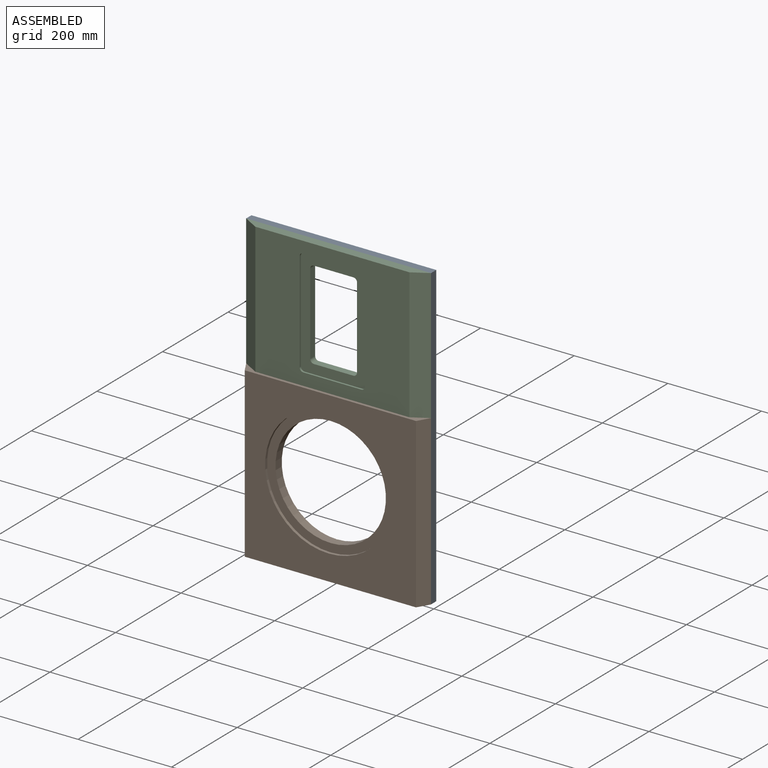
[diagram: assembled view]
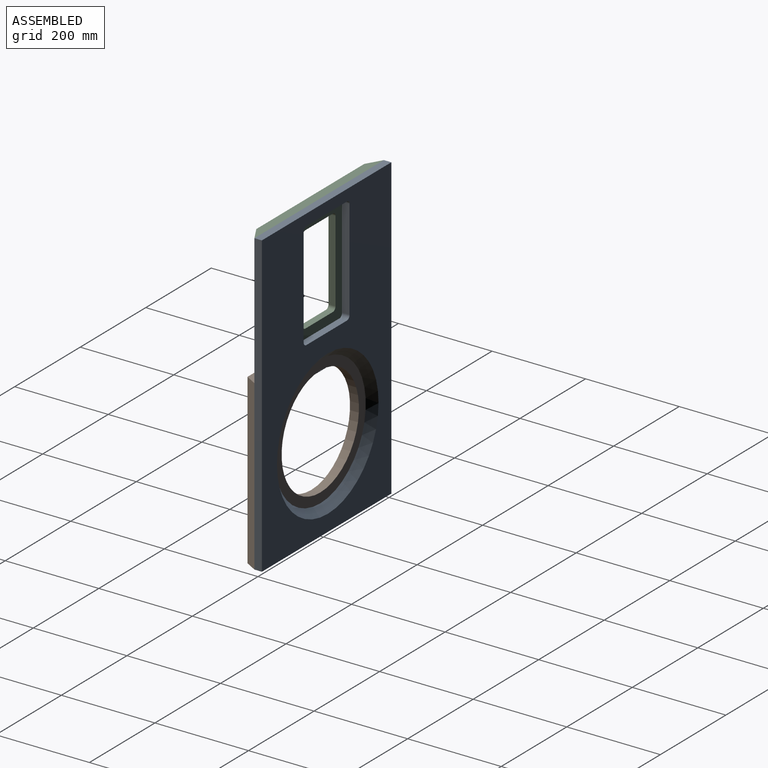
[diagram: assembled view, second angle]
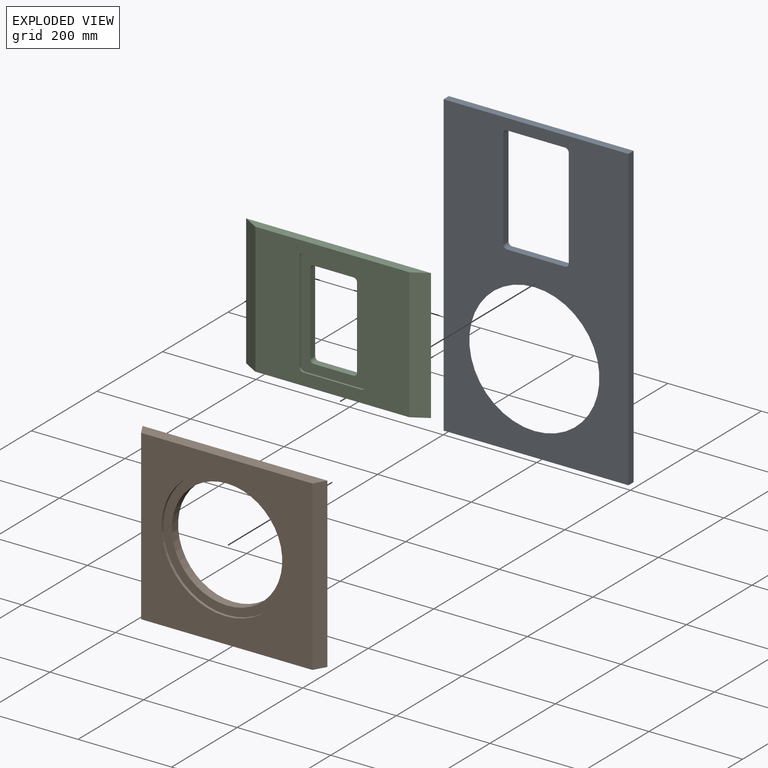
[diagram: exploded view]
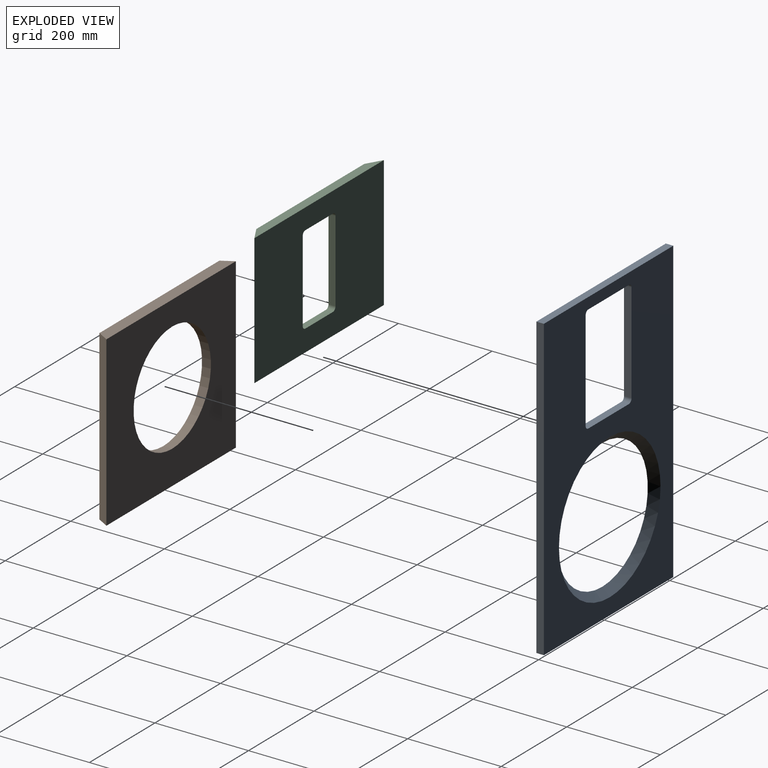
[diagram: exploded view, second angle]
ASSEMBLY  parts=3 mates=2
PART A: 15 faces, bbox 395x16x640 mm
  f0: plane 640x16mm, normal (-1,0,0), area 10240mm2, adj f1,f3,f4,f5
  f1: plane 395x16mm, normal (0,0,-1), area 6320mm2, adj f0,f2,f4,f5
  f2: plane 640x16mm, normal (1,0,0), area 10240mm2, adj f1,f3,f4,f5
  f3: plane 395x16mm, normal (0,0,1), area 6320mm2, adj f0,f2,f4,f5
  f4: plane 640x395mm, normal (0,-1,0), area 159956.2mm2, adj f0,f1,f2,f3,f6,f7,f8,f9
  f5: plane 640x395mm, normal (0,1,0), area 145178.2mm2, adj f0,f1,f2,f3,f6,f7,f8,f9
  f6: plane 214x16mm, normal (-1,0,0), area 3424mm2, adj f4,f5,f7,f13
  f7: cylinder r=8mm len=16mm, axis (0,-1,0), area 201.1mm2, adj f4,f5,f6,f8
  f8: plane 124x16mm, normal (0,0,-1), area 1984mm2, adj f4,f5,f7,f9
  f9: cylinder r=8mm len=16mm, axis (0,-1,0), area 201.1mm2, adj f4,f5,f8,f10
  f10: plane 214x16mm, normal (1,0,0), area 3424mm2, adj f4,f5,f9,f11
  f11: cylinder r=8mm len=16mm, axis (0,-1,0), area 201.1mm2, adj f4,f5,f10,f12
  f12: plane 124x16mm, normal (0,0,1), area 1984mm2, adj f4,f5,f11,f13
  f13: cylinder r=8mm len=16mm, axis (0,-1,0), area 201.1mm2, adj f4,f5,f6,f12
  f14: cone r=155mm half-angle=45deg, axis (0,1,0), area 20899.3mm2, adj f4,f5
PART B: 9 faces, bbox 395x25x360 mm
  f0: plane 395x25mm, normal (0,0,-1), area 9514.2mm2, adj f2,f3,f4,f5
  f1: plane 395x25mm, normal (0,0,1), area 9514.2mm2, adj f2,f3,f4,f5
  f2: plane 366.13x360mm, normal (0,-1,0), area 73700.8mm2, adj f0,f1,f4,f5,f6
  f3: plane 395x360mm, normal (0,1,0), area 98456.5mm2, adj f0,f1,f4,f5,f8
  f4: plane 360x25mm, normal (-0.87,-0.5,0), area 10392.3mm2, adj f0,f1,f2,f3
  f5: plane 360x25mm, normal (0.87,-0.5,0), area 10392.3mm2, adj f0,f1,f2,f3
  f6: cylinder r=136mm len=272mm, axis (0,-1,0), area 5127.1mm2, adj f2,f7
  f7: plane 272x272mm, normal (0,-1,0), area 14363.4mm2, adj f6,f8
  f8: cylinder r=118mm len=236mm, axis (0,-1,0), area 14086.9mm2, adj f3,f7
PART C: 23 faces, bbox 395x19x280 mm
  f0: plane 230x140mm, normal (0,-1,0), area 13200mm2, adj f7,f8,f9,f10,f11,f12,f13,f14
  f1: plane 395x280mm, normal (0,1,0), area 91654.9mm2, adj f2,f3,f5,f6,f15,f16,f17,f18
  f2: plane 395x19mm, normal (0,0,-1), area 6879.7mm2, adj f1,f4,f5,f6
  f3: plane 395x19mm, normal (0,0,1), area 6879.7mm2, adj f1,f4,f5,f6
  f4: plane 329.18x280mm, normal (0,-1,0), area 60025.9mm2, adj f2,f3,f5,f6,f7,f8,f9,f10
  f5: plane 280x32.91mm, normal (-0.5,-0.87,0), area 10640mm2, adj f1,f2,f3,f4
  f6: plane 280x32.91mm, normal (0.5,-0.87,0), area 10640mm2, adj f1,f2,f3,f4
  f7: plane 214x4mm, normal (-1,0,0), area 856mm2, adj f0,f4,f8,f14
  f8: cylinder r=8mm len=8mm, axis (0,-1,0), area 50.3mm2, adj f0,f4,f7,f9
  f9: plane 124x4mm, normal (0,0,-1), area 496mm2, adj f0,f4,f8,f10
  f10: cylinder r=8mm len=8mm, axis (0,-1,0), area 50.3mm2, adj f0,f4,f9,f11
  f11: plane 214x4mm, normal (1,0,0), area 856mm2, adj f0,f4,f10,f12
  f12: cylinder r=8mm len=8mm, axis (0,-1,0), area 50.3mm2, adj f0,f4,f11,f13
  f13: plane 124x4mm, normal (0,0,1), area 496mm2, adj f0,f4,f12,f14
  f14: cylinder r=8mm len=8mm, axis (0,-1,0), area 50.3mm2, adj f0,f4,f7,f13
  f15: plane 174x15mm, normal (-1,0,0), area 2610mm2, adj f0,f1,f16,f22
  f16: cylinder r=8mm len=15mm, axis (0,-1,0), area 188.5mm2, adj f0,f1,f15,f17
  f17: plane 84x15mm, normal (0,0,-1), area 1260mm2, adj f0,f1,f16,f18
  f18: cylinder r=8mm len=15mm, axis (0,-1,0), area 188.5mm2, adj f0,f1,f17,f19
  f19: plane 174x15mm, normal (1,0,0), area 2610mm2, adj f0,f1,f18,f20
  f20: cylinder r=8mm len=15mm, axis (0,-1,0), area 188.5mm2, adj f0,f1,f19,f21
  f21: plane 84x15mm, normal (0,0,1), area 1260mm2, adj f0,f1,f20,f22
  f22: cylinder r=8mm len=15mm, axis (0,-1,0), area 188.5mm2, adj f0,f1,f15,f21
PLACE A t=(-1.48,8.22,9.34)mm
PLACE B t=(-1.48,-7.78,9.34)mm
PLACE C t=(-1.48,-7.78,369.34)mm
MATE planar B.f3 <-> A.f4  axis (0,1,0) through (2.04,-7.78,-321.44)mm
MATE planar C.f1 <-> A.f4  axis (0,1,0) through (2.04,-7.78,318.56)mm
